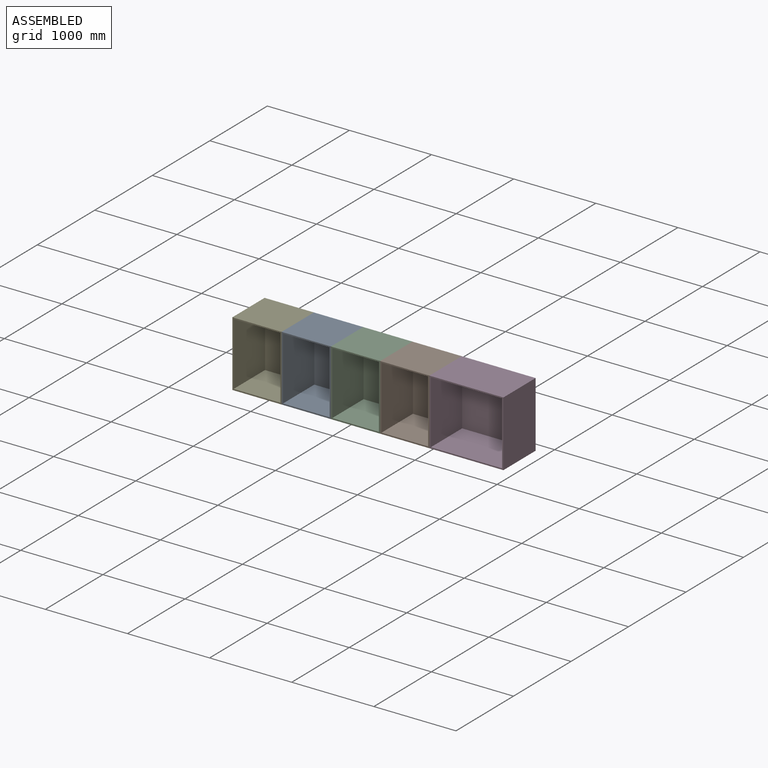
[diagram: assembled view]
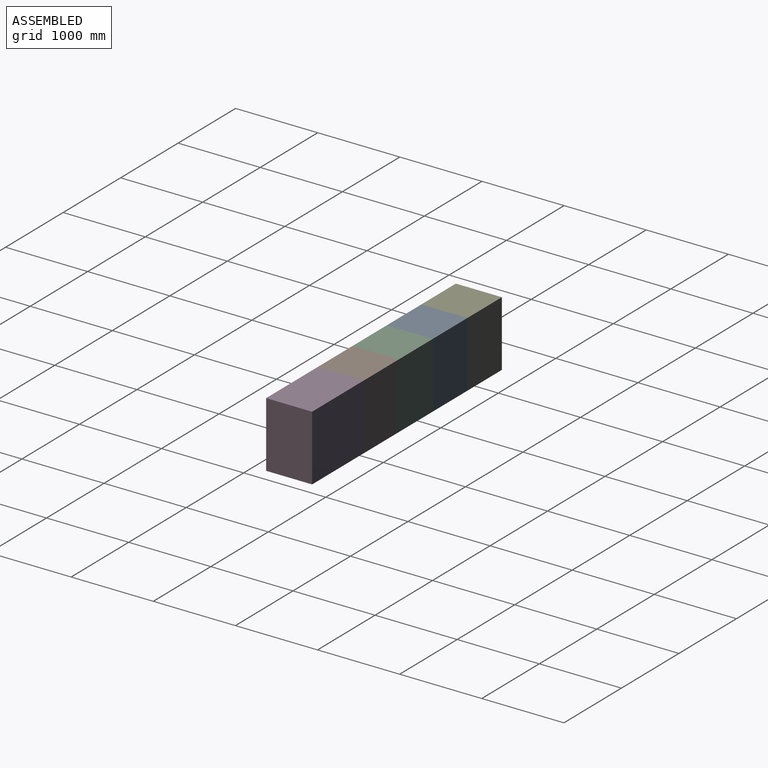
[diagram: assembled view, second angle]
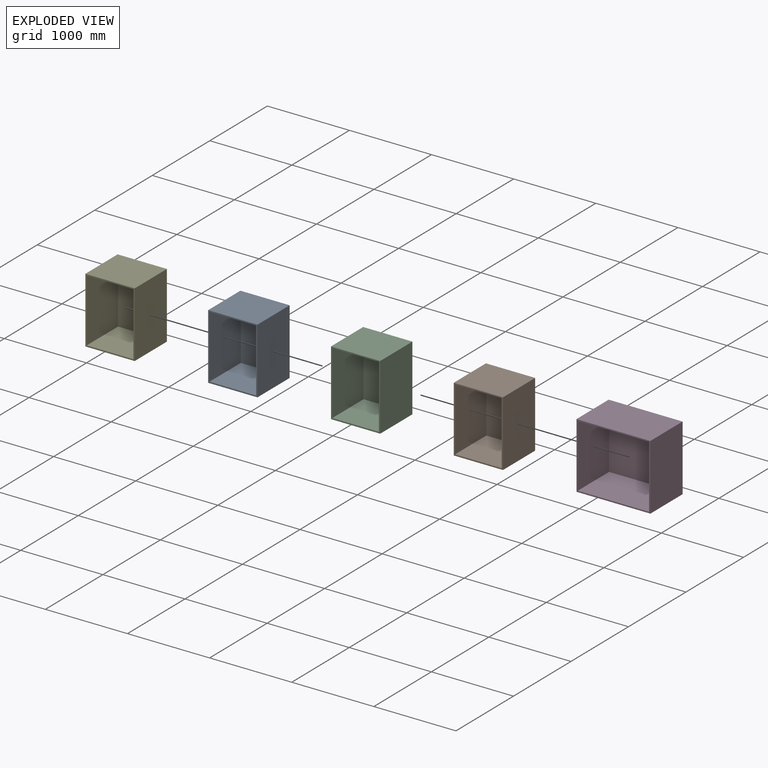
[diagram: exploded view]
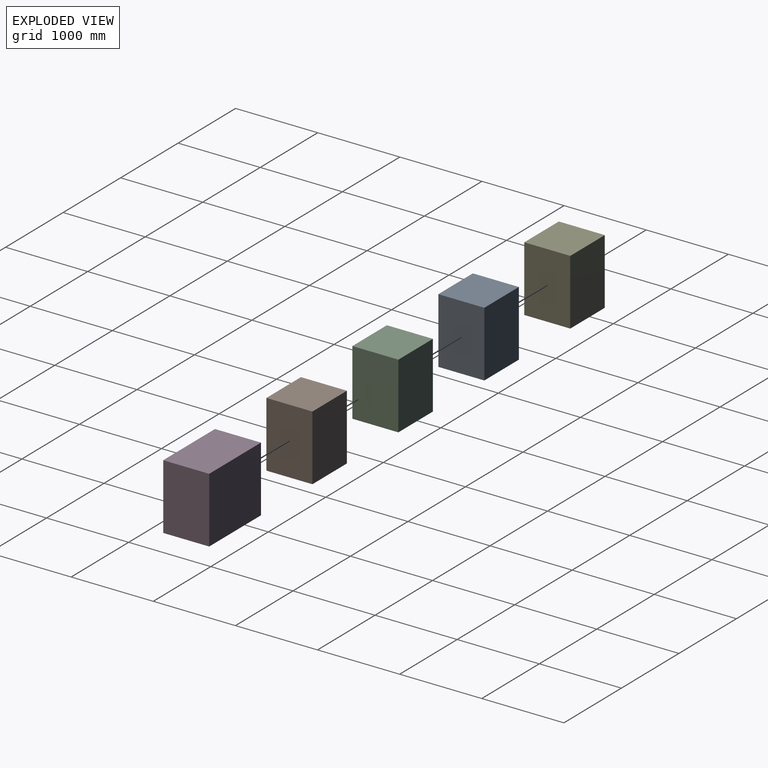
[diagram: exploded view, second angle]
ASSEMBLY  parts=5 mates=4
PART A: 11 faces, bbox 600x560x800 mm
  f0: plane 800x600mm, normal (0,-1,0), area 43776mm2, adj f1,f3,f4,f5,f6,f8,f9,f10
  f1: plane 800x560mm, normal (1,0,0), area 448000mm2, adj f0,f2,f4,f5
  f2: plane 800x600mm, normal (0,1,0), area 480000mm2, adj f1,f3,f4,f5
  f3: plane 800x560mm, normal (-1,0,0), area 448000mm2, adj f0,f2,f4,f5
  f4: plane 600x560mm, normal (0,0,1), area 336000mm2, adj f0,f1,f2,f3
  f5: plane 600x560mm, normal (0,0,-1), area 336000mm2, adj f0,f1,f2,f3
  f6: plane 768x544mm, normal (-1,0,0), area 417792mm2, adj f0,f7,f9,f10
  f7: plane 768x568mm, normal (0,-1,0), area 436224mm2, adj f6,f8,f9,f10
  f8: plane 768x544mm, normal (1,0,0), area 417792mm2, adj f0,f7,f9,f10
  f9: plane 568x544mm, normal (0,0,-1), area 308992mm2, adj f0,f6,f7,f8
  f10: plane 568x544mm, normal (0,0,1), area 308992mm2, adj f0,f6,f7,f8
PART B: same geometry as A
PART C: same geometry as A
PART D: 11 faces, bbox 900x560x800 mm
  f0: plane 900x800mm, normal (0,-1,0), area 53376mm2, adj f1,f3,f4,f5,f6,f8,f9,f10
  f1: plane 800x560mm, normal (1,0,0), area 448000mm2, adj f0,f2,f4,f5
  f2: plane 900x800mm, normal (0,1,0), area 720000mm2, adj f1,f3,f4,f5
  f3: plane 800x560mm, normal (-1,0,0), area 448000mm2, adj f0,f2,f4,f5
  f4: plane 900x560mm, normal (0,0,1), area 504000mm2, adj f0,f1,f2,f3
  f5: plane 900x560mm, normal (0,0,-1), area 504000mm2, adj f0,f1,f2,f3
  f6: plane 768x544mm, normal (-1,0,0), area 417792mm2, adj f0,f7,f9,f10
  f7: plane 868x768mm, normal (0,-1,0), area 666624mm2, adj f6,f8,f9,f10
  f8: plane 768x544mm, normal (1,0,0), area 417792mm2, adj f0,f7,f9,f10
  f9: plane 868x544mm, normal (0,0,-1), area 472192mm2, adj f0,f6,f7,f8
  f10: plane 868x544mm, normal (0,0,1), area 472192mm2, adj f0,f6,f7,f8
PART E: same geometry as A
PLACE A t=(519.27,499.75,-101.87)mm
PLACE B t=(1719.27,499.75,-101.87)mm
PLACE C t=(1119.27,499.75,-101.87)mm
PLACE D t=(2469.27,499.75,-101.87)mm
PLACE E t=(-80.73,499.75,-101.87)mm fixed
MATE fastened E.f1 <-> A.f3  axis (1,0,0) through (222.82,219.75,698.13)mm
MATE fastened B.f3 <-> C.f1  axis (-1,0,0) through (1422.82,219.75,698.13)mm
MATE fastened B.f1 <-> D.f3  axis (1,0,0) through (2022.82,219.75,698.13)mm
MATE fastened A.f1 <-> C.f3  axis (1,0,0) through (822.82,219.75,698.13)mm
